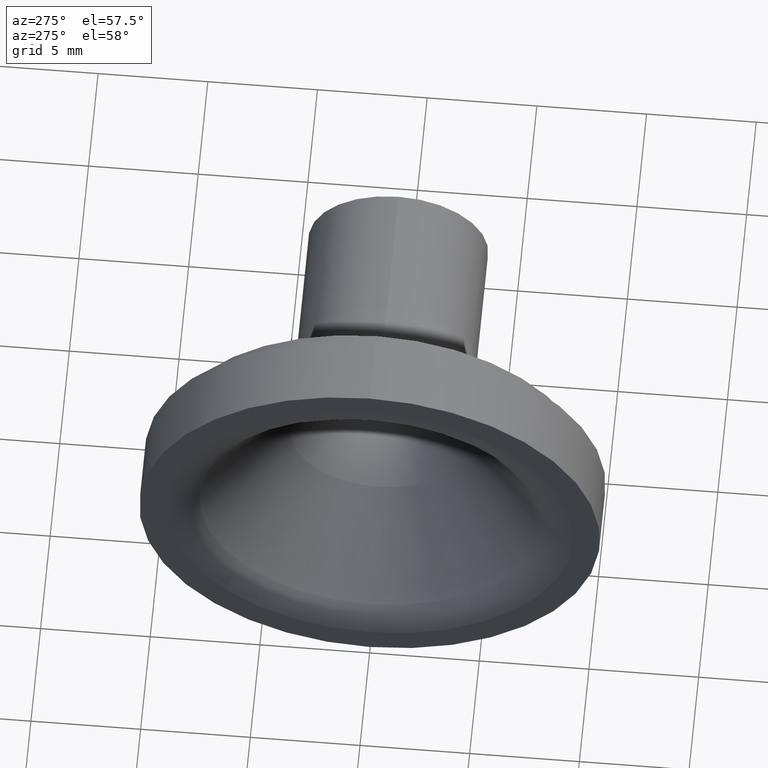
[diagram: clean part render]
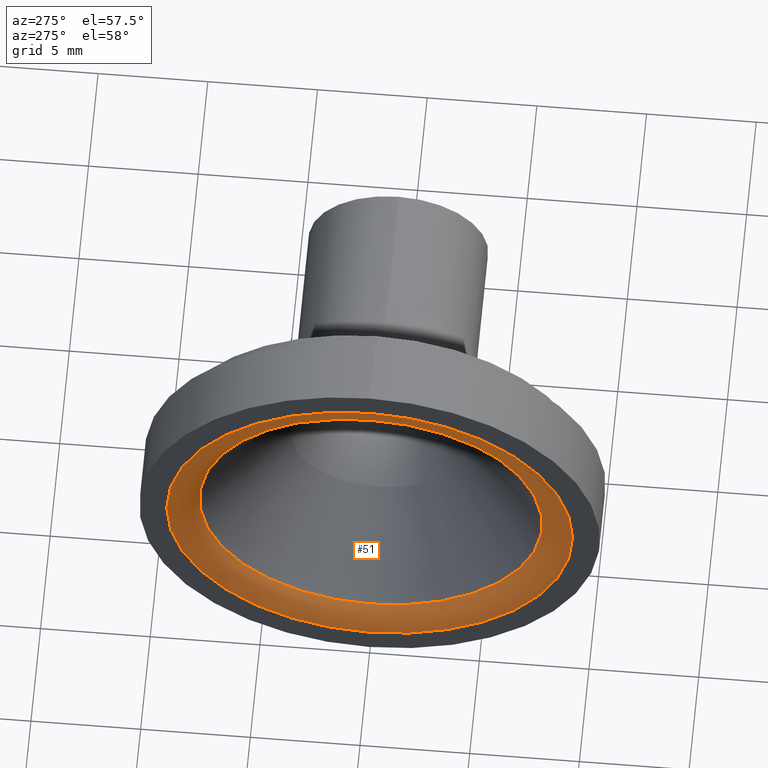
[diagram: same view with one face highlighted and labeled with its STEP entity id]
A machine part, auxiliary view. The second image highlights one B-rep face of the part: STEP entity #51.
In plain terms, the highlighted toroidal blend (fillet) surface has major radius 9.25 mm and minor (blend) radius 2 mm.
Its self-contained STEP definition (entity closure, byte-faithful):
#51 = ADVANCED_FACE( '', ( #108, #109 ), #110, .T. );
#108 = FACE_OUTER_BOUND( '', #167, .T. );
#109 = FACE_OUTER_BOUND( '', #168, .T. );
#110 = TOROIDAL_SURFACE( '', #169, 9.25000000000000, 2.00000000000000 );
#167 = EDGE_LOOP( '', ( #234 ) );
#168 = EDGE_LOOP( '', ( #235 ) );
#169 = AXIS2_PLACEMENT_3D( '', #236, #237, #238 );
#234 = ORIENTED_EDGE( '', *, *, #287, .T. );
#235 = ORIENTED_EDGE( '', *, *, #283, .F. );
#236 = CARTESIAN_POINT( '', ( 2.00000000000000, 0.000000000000000, 0.000000000000000 ) );
#237 = DIRECTION( '', ( -1.00000000000000, 0.000000000000000, 0.000000000000000 ) );
#238 = DIRECTION( '', ( 0.000000000000000, 0.000000000000000, 1.00000000000000 ) );
#283 = EDGE_CURVE( '', #317, #317, #318, .T. );
#287 = EDGE_CURVE( '', #323, #323, #324, .T. );
#317 = VERTEX_POINT( '', #356 );
#318 = CIRCLE( '', #357, 7.81615624912156 );
#323 = VERTEX_POINT( '', #362 );
#324 = CIRCLE( '', #363, 9.25000000000000 );
#356 = CARTESIAN_POINT( '', ( 0.605692968508431, 0.000000000000000, 7.81615624912156 ) );
#357 = AXIS2_PLACEMENT_3D( '', #397, #398, #399 );
#362 = CARTESIAN_POINT( '', ( 0.000000000000000, 0.000000000000000, 9.25000000000000 ) );
#363 = AXIS2_PLACEMENT_3D( '', #403, #404, #405 );
#397 = CARTESIAN_POINT( '', ( 0.605692968508431, 0.000000000000000, 0.000000000000000 ) );
#398 = DIRECTION( '', ( -1.00000000000000, 0.000000000000000, 0.000000000000000 ) );
#399 = DIRECTION( '', ( 0.000000000000000, 0.000000000000000, 1.00000000000000 ) );
#403 = CARTESIAN_POINT( '', ( 0.000000000000000, 0.000000000000000, 0.000000000000000 ) );
#404 = DIRECTION( '', ( -1.00000000000000, 0.000000000000000, 0.000000000000000 ) );
#405 = DIRECTION( '', ( 0.000000000000000, 0.000000000000000, 1.00000000000000 ) );